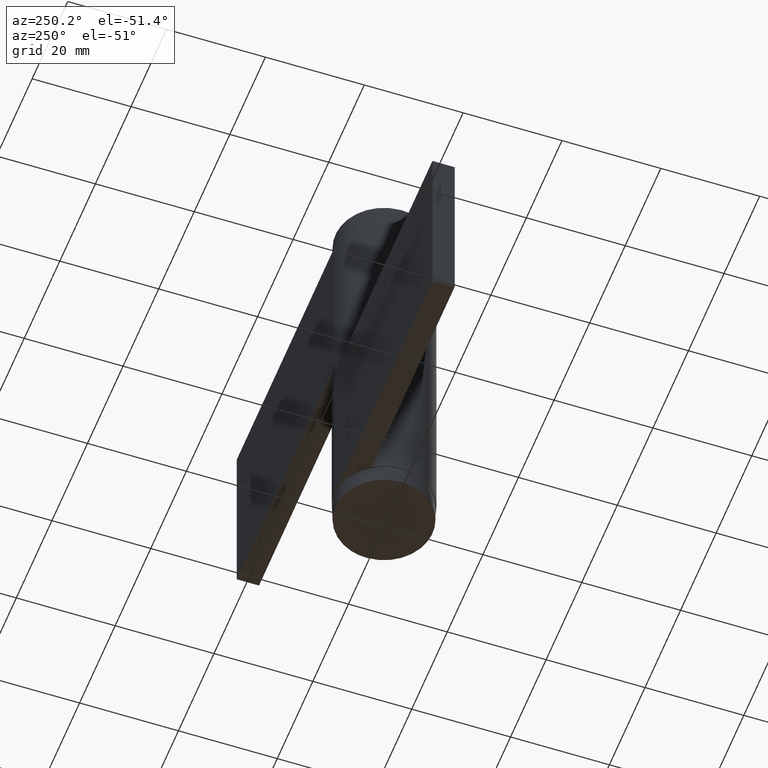
[diagram: clean part render]
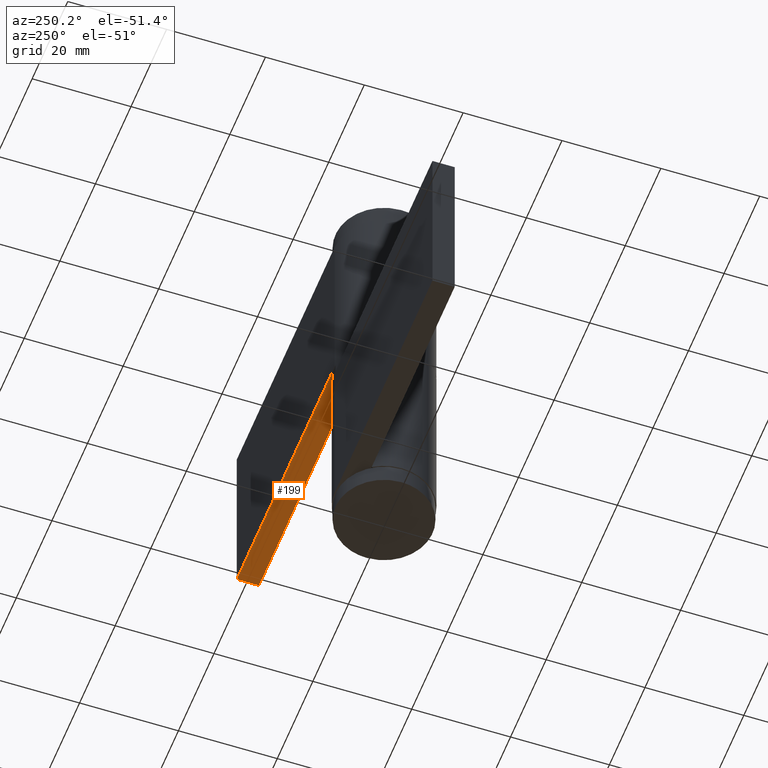
[diagram: same view with one face highlighted and labeled with its STEP entity id]
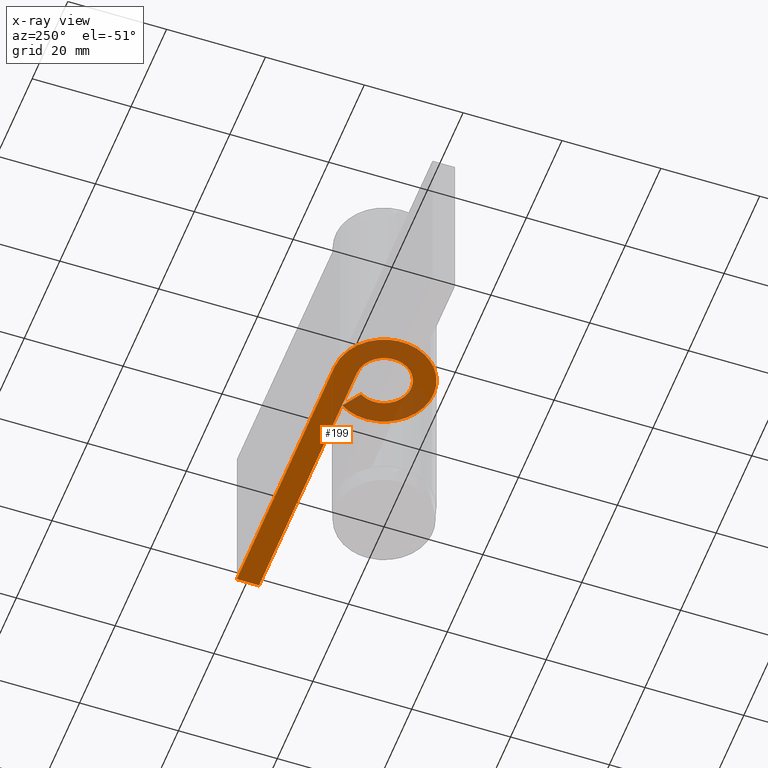
[diagram: x-ray of the same camera — body ghosted, the highlighted face saturated]
A machine part, auxiliary view. The second image highlights one B-rep face of the part: STEP entity #199.
The next image is the same camera in x-ray: the body ghosted, the highlighted face saturated — about 36% of this face is hidden behind the body in this view.
In plain terms, the highlighted face is a freeform B-spline surface patch.
Its self-contained STEP definition (entity closure, byte-faithful):
#122=CARTESIAN_POINT('',(-58.246687252140831,-10.993734140308540,36.500000000000000));
#123=CARTESIAN_POINT('',(13.245435304272061,-10.993734140308540,36.500000000000000));
#124=CARTESIAN_POINT('',(-58.246687252140831,10.998749982999270,36.500000000000000));
#125=CARTESIAN_POINT('',(13.245435304272061,10.998749982999270,36.500000000000000));
#126=B_SPLINE_SURFACE_WITH_KNOTS('',1,1,((#122,#124),(#123,#125)),.UNSPECIFIED.,.F.,.F.,.U.,(2,2),(2,2),(0.0,71.492122556412895),(0.0,21.992484123307811),.UNSPECIFIED.);
#127=CARTESIAN_POINT('',(-55.0,10.0,36.500000000000000));
#128=VERTEX_POINT('',#127);
#129=CARTESIAN_POINT('',(-55.0,5.500000000000000,36.500000000000000));
#130=VERTEX_POINT('',#129);
#131=CARTESIAN_POINT('',(-55.0,10.0,36.500000000000000));
#132=CARTESIAN_POINT('',(-55.0,5.500000000000000,36.500000000000000));
#133=QUASI_UNIFORM_CURVE('',1,(#131,#132),.UNSPECIFIED.,.F.,.U.);
#134=EDGE_CURVE('',#128,#130,#133,.T.);
#135=ORIENTED_EDGE('',*,*,#134,.T.);
#136=CARTESIAN_POINT('',(-7.105427E-015,5.500000000000000,36.500000000000000));
#137=VERTEX_POINT('',#136);
#138=CARTESIAN_POINT('',(-55.0,5.500000000000000,36.500000000000000));
#139=CARTESIAN_POINT('',(-7.105427E-015,5.500000000000000,36.500000000000000));
#140=QUASI_UNIFORM_CURVE('',1,(#138,#139),.UNSPECIFIED.,.F.,.U.);
#141=EDGE_CURVE('',#130,#137,#140,.T.);
#142=ORIENTED_EDGE('',*,*,#141,.T.);
#143=CARTESIAN_POINT('',(-4.611398242398940,2.997500000000000,36.500000000000000));
#144=VERTEX_POINT('',#143);
#145=CARTESIAN_POINT('',(0.0,5.500000000000000,36.500000000000000));
#146=CARTESIAN_POINT('',(4.278255285808725,5.499999999999999,36.500000000000007));
#147=CARTESIAN_POINT('',(5.330915666879423,1.353269430904104,36.500000000000000));
#148=CARTESIAN_POINT('',(6.383576047950124,-2.793461138191798,36.500000000000007));
#149=CARTESIAN_POINT('',(2.623332803896608,-4.834058853592906,36.500000000000000));
#150=CARTESIAN_POINT('',(-1.136910440156906,-6.874656568994015,36.500000000000007));
#151=CARTESIAN_POINT('',(-4.039978906660799,-3.732100003179954,36.500000000000000));
#152=CARTESIAN_POINT('',(-6.943047373164695,-0.589543437365889,36.500000000000007));
#153=CARTESIAN_POINT('',(-4.611398242398940,2.997499999999995,36.500000000000000));
#161=(BOUNDED_CURVE()B_SPLINE_CURVE(2,(#145,#146,#147,#148,#149,#150,#151,#152,#153),.UNSPECIFIED.,.F.,.U.)B_SPLINE_CURVE_WITH_KNOTS((3,2,2,2,3),(0.0,0.250000000000000,0.500000000000000,0.750000000000000,1.0),.UNSPECIFIED.)CURVE()GEOMETRIC_REPRESENTATION_ITEM()RATIONAL_B_SPLINE_CURVE((1.0,0.789319006307687,1.0,0.789319006307687,1.0,0.789319006307687,1.0,0.789319006307687,1.0))REPRESENTATION_ITEM(''));
#162=EDGE_CURVE('',#137,#144,#161,.T.);
#163=ORIENTED_EDGE('',*,*,#162,.T.);
#164=CARTESIAN_POINT('',(-8.384360440725351,5.450000000000000,36.500000000000000));
#165=VERTEX_POINT('',#164);
#166=CARTESIAN_POINT('',(-4.611398242398940,2.997500000000000,36.500000000000000));
#167=CARTESIAN_POINT('',(-8.384360440725351,5.450000000000000,36.500000000000000));
#168=QUASI_UNIFORM_CURVE('',1,(#166,#167),.UNSPECIFIED.,.F.,.U.);
#169=EDGE_CURVE('',#144,#165,#168,.T.);
#170=ORIENTED_EDGE('',*,*,#169,.T.);
#171=CARTESIAN_POINT('',(6.123032E-016,10.0,36.500000000000000));
#172=VERTEX_POINT('',#171);
#173=CARTESIAN_POINT('',(0.0,10.0,36.500000000000000));
#174=CARTESIAN_POINT('',(7.778645974197688,10.0,36.500000000000000));
#175=CARTESIAN_POINT('',(9.692573939780772,2.460489874371089,36.500000000000000));
#176=CARTESIAN_POINT('',(11.606501905363858,-5.079020251257823,36.500000000000000));
#177=CARTESIAN_POINT('',(4.769696007084734,-8.789197915623470,36.500000000000000));
#178=CARTESIAN_POINT('',(-2.067109891194394,-12.499375579989119,36.500000000000000));
#179=CARTESIAN_POINT('',(-7.345416193928739,-6.785636369418084,36.500000000000000));
#180=CARTESIAN_POINT('',(-12.623722496663074,-1.071897158847060,36.500000000000000));
#181=CARTESIAN_POINT('',(-8.384360440725345,5.449999999999990,36.500000000000000));
#189=(BOUNDED_CURVE()B_SPLINE_CURVE(2,(#173,#174,#175,#176,#177,#178,#179,#180,#181),.UNSPECIFIED.,.F.,.U.)B_SPLINE_CURVE_WITH_KNOTS((3,2,2,2,3),(0.0,0.250000000000000,0.500000000000000,0.750000000000000,1.0),.UNSPECIFIED.)CURVE()GEOMETRIC_REPRESENTATION_ITEM()RATIONAL_B_SPLINE_CURVE((1.0,0.789319006307687,1.0,0.789319006307687,1.0,0.789319006307687,1.0,0.789319006307687,1.0))REPRESENTATION_ITEM(''));
#190=EDGE_CURVE('',#172,#165,#189,.T.);
#191=ORIENTED_EDGE('',*,*,#190,.F.);
#192=CARTESIAN_POINT('',(6.123032E-016,10.0,36.500000000000000));
#193=CARTESIAN_POINT('',(-55.0,10.0,36.500000000000000));
#194=QUASI_UNIFORM_CURVE('',1,(#192,#193),.UNSPECIFIED.,.F.,.U.);
#195=EDGE_CURVE('',#172,#128,#194,.T.);
#196=ORIENTED_EDGE('',*,*,#195,.T.);
#197=EDGE_LOOP('',(#135,#142,#163,#170,#191,#196));
#198=FACE_OUTER_BOUND('',#197,.T.);
#199=ADVANCED_FACE('',(#198),#126,.T.);